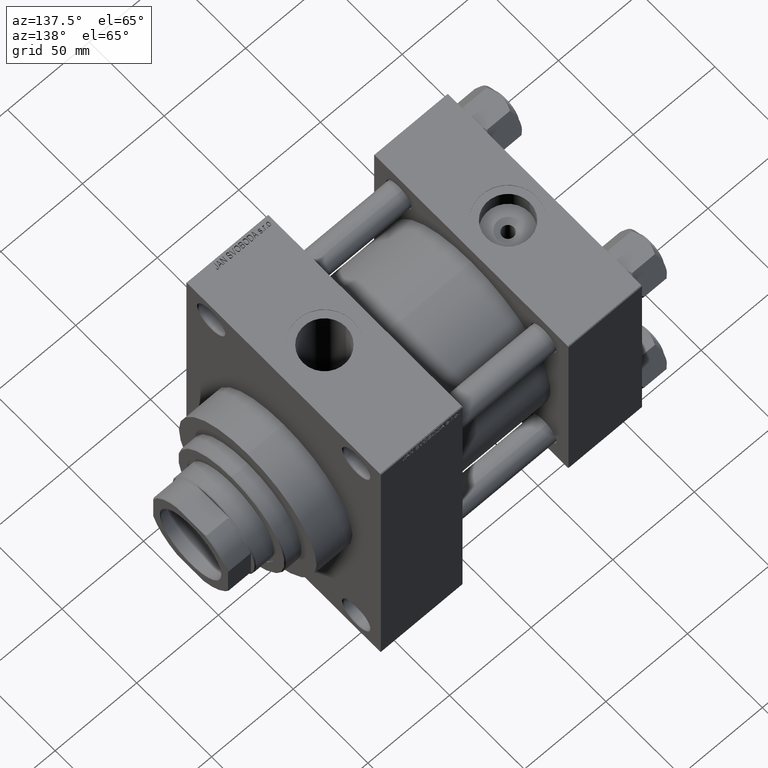
[diagram: clean part render]
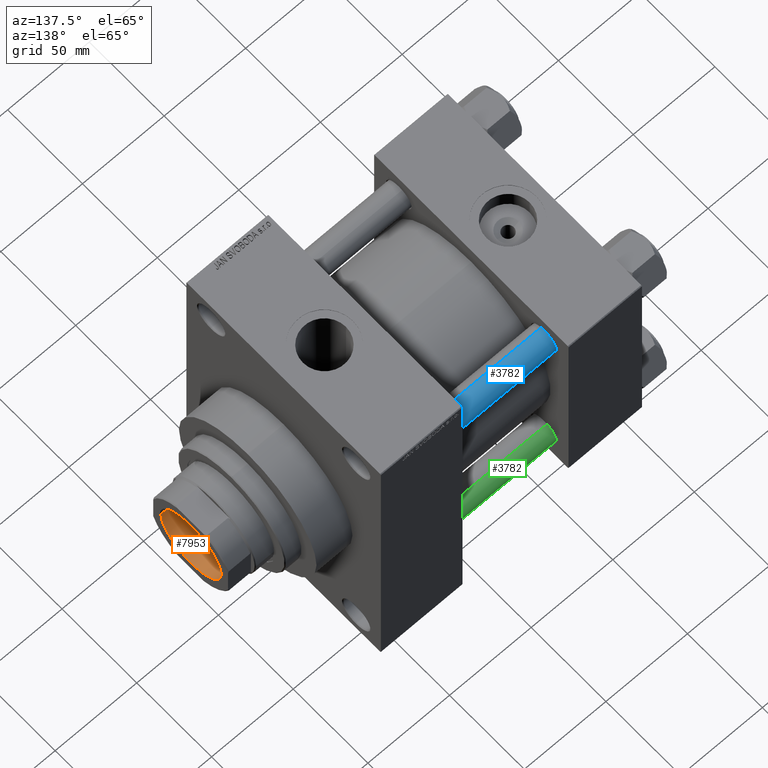
[diagram: same view with three faces highlighted in distinct colors, each labeled with its STEP entity id]
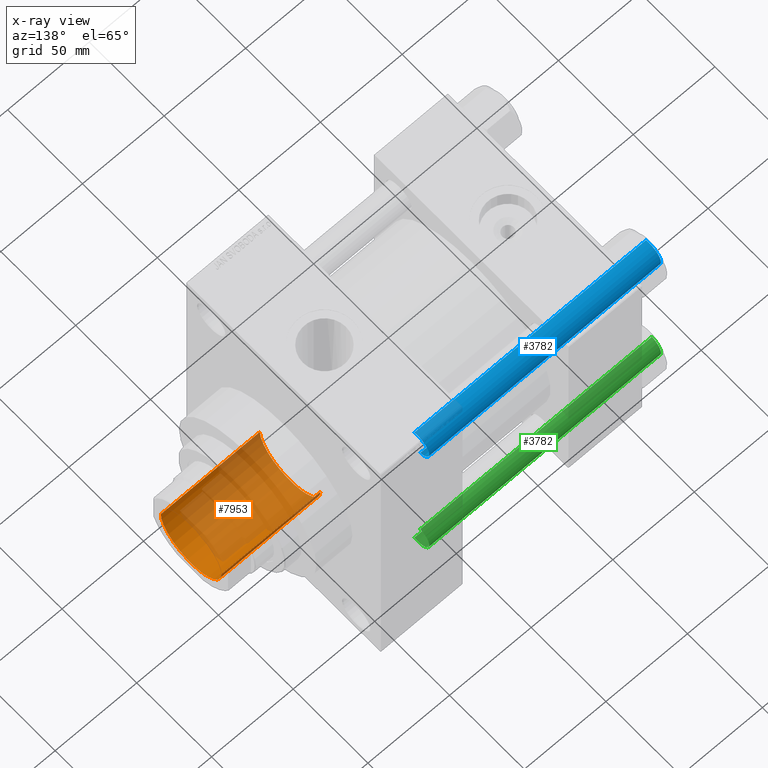
[diagram: x-ray of the same camera — body ghosted, the three highlighted faces saturated]
A machine part, auxiliary view with three faces highlighted in distinct colors.
The next image is the same camera in x-ray (body ghosted, the three faces saturated) — at least one of them is partly hidden behind the body in this view.
Their STEP definitions:

[orange] entity #7953 — the highlighted cylindrical surface (partial cylindrical patch) has radius 20.25 mm, axis along (1, 0, 0).
#303 = DIRECTION ( 'NONE',  ( -0.000000000000000000, -0.000000000000000000, 1.000000000000000000 ) ) ;
#2147 = CARTESIAN_POINT ( 'NONE',  ( 20.24999999999999289, 0.000000000000000000, 172.0000000000000000 ) ) ;
#5986 = DIRECTION ( 'NONE',  ( -0.000000000000000000, -0.000000000000000000, 1.000000000000000000 ) ) ;
#6214 = EDGE_CURVE ( 'NONE', #28923, #8968, #32010, .T. ) ;
#6332 = VECTOR ( 'NONE', #5986, 1000.000000000000000 ) ;
#7672 = DIRECTION ( 'NONE',  ( 1.000000000000000000, 0.000000000000000000, 0.000000000000000000 ) ) ;
#7953 = ADVANCED_FACE ( 'NONE', ( #36679 ), #33049, .F. ) ;
#8968 = VERTEX_POINT ( 'NONE', #16857 ) ;
#9149 = EDGE_CURVE ( 'NONE', #8968, #15793, #25657, .T. ) ;
#9890 = CARTESIAN_POINT ( 'NONE',  ( 0.000000000000000000, 0.000000000000000000, 172.0000000000000000 ) ) ;
#10499 = CARTESIAN_POINT ( 'NONE',  ( -20.24999999999998934, 2.479909768273389117E-15, 111.0000000000000142 ) ) ;
#10710 = LINE ( 'NONE', #42821, #47074 ) ;
#11021 = AXIS2_PLACEMENT_3D ( 'NONE', #40730, #19478, #7672 ) ;
#14491 = CIRCLE ( 'NONE', #19898, 20.24999999999998934 ) ;
#15793 = VERTEX_POINT ( 'NONE', #22271 ) ;
#16857 = CARTESIAN_POINT ( 'NONE',  ( 20.24999999999999289, 0.000000000000000000, 171.7000000000000455 ) ) ;
#19478 = DIRECTION ( 'NONE',  ( 0.000000000000000000, 0.000000000000000000, 1.000000000000000000 ) ) ;
#19479 = EDGE_LOOP ( 'NONE', ( #29958, #27586, #42632, #46082 ) ) ;
#19898 = AXIS2_PLACEMENT_3D ( 'NONE', #44003, #303, #33129 ) ;
#22271 = CARTESIAN_POINT ( 'NONE',  ( -20.24999999999999289, 2.479909768273389511E-15, 171.7000000000000455 ) ) ;
#24610 = DIRECTION ( 'NONE',  ( -0.000000000000000000, -0.000000000000000000, 1.000000000000000000 ) ) ;
#25426 = DIRECTION ( 'NONE',  ( -0.000000000000000000, -0.000000000000000000, 1.000000000000000000 ) ) ;
#25657 = CIRCLE ( 'NONE', #11021, 20.24999999999999289 ) ;
#27586 = ORIENTED_EDGE ( 'NONE', *, *, #42664, .F. ) ;
#28923 = VERTEX_POINT ( 'NONE', #46150 ) ;
#29958 = ORIENTED_EDGE ( 'NONE', *, *, #31694, .F. ) ;
#31694 = EDGE_CURVE ( 'NONE', #42344, #15793, #10710, .T. ) ;
#32010 = LINE ( 'NONE', #2147, #6332 ) ;
#33049 = CYLINDRICAL_SURFACE ( 'NONE', #45680, 20.24999999999999289 ) ;
#33129 = DIRECTION ( 'NONE',  ( 1.000000000000000000, 0.000000000000000000, 0.000000000000000000 ) ) ;
#36679 = FACE_OUTER_BOUND ( 'NONE', #19479, .T. ) ;
#37868 = DIRECTION ( 'NONE',  ( 1.000000000000000000, 0.000000000000000000, 0.000000000000000000 ) ) ;
#40730 = CARTESIAN_POINT ( 'NONE',  ( 0.000000000000000000, 0.000000000000000000, 171.7000000000000455 ) ) ;
#42344 = VERTEX_POINT ( 'NONE', #10499 ) ;
#42632 = ORIENTED_EDGE ( 'NONE', *, *, #6214, .T. ) ;
#42664 = EDGE_CURVE ( 'NONE', #28923, #42344, #14491, .T. ) ;
#42821 = CARTESIAN_POINT ( 'NONE',  ( -20.24999999999999289, 2.479909768273389511E-15, 172.0000000000000000 ) ) ;
#44003 = CARTESIAN_POINT ( 'NONE',  ( 0.000000000000000000, 0.000000000000000000, 111.0000000000000142 ) ) ;
#45680 = AXIS2_PLACEMENT_3D ( 'NONE', #9890, #24610, #37868 ) ;
#46082 = ORIENTED_EDGE ( 'NONE', *, *, #9149, .T. ) ;
#46150 = CARTESIAN_POINT ( 'NONE',  ( 20.24999999999998934, 0.000000000000000000, 111.0000000000000142 ) ) ;
#47074 = VECTOR ( 'NONE', #25426, 1000.000000000000000 ) ;

[blue] entity #3782 — the highlighted cylindrical surface (edge-blend (fillet) strip) has radius 8 mm, axis along (-1, -0, 0).
#149 = CARTESIAN_POINT ( 'NONE',  ( 8.000000000000000000, 9.797174393178825657E-16, 142.4999999999999716 ) ) ;
#708 = CARTESIAN_POINT ( 'NONE',  ( 8.000000000000000000, 9.797174393178825657E-16, 143.0000000000000000 ) ) ;
#2430 = CARTESIAN_POINT ( 'NONE',  ( -8.000000000000000000, 0.000000000000000000, 143.0000000000000000 ) ) ;
#3782 = ADVANCED_FACE ( 'NONE', ( #14235 ), #28933, .T. ) ;
#4407 = EDGE_CURVE ( 'NONE', #37935, #8914, #16669, .T. ) ;
#4567 = DIRECTION ( 'NONE',  ( -0.000000000000000000, -0.000000000000000000, -1.000000000000000000 ) ) ;
#4805 = ORIENTED_EDGE ( 'NONE', *, *, #45771, .T. ) ;
#5047 = LINE ( 'NONE', #708, #24162 ) ;
#8914 = VERTEX_POINT ( 'NONE', #41731 ) ;
#9923 = CIRCLE ( 'NONE', #36921, 8.000000000000000000 ) ;
#10828 = EDGE_CURVE ( 'NONE', #46634, #45808, #5047, .T. ) ;
#13881 = ORIENTED_EDGE ( 'NONE', *, *, #10828, .T. ) ;
#14235 = FACE_OUTER_BOUND ( 'NONE', #24291, .T. ) ;
#14479 = DIRECTION ( 'NONE',  ( -0.000000000000000000, -0.000000000000000000, -1.000000000000000000 ) ) ;
#16669 = LINE ( 'NONE', #2430, #46784 ) ;
#16940 = DIRECTION ( 'NONE',  ( 1.000000000000000000, 0.000000000000000000, 0.000000000000000000 ) ) ;
#18551 = DIRECTION ( 'NONE',  ( -0.000000000000000000, -0.000000000000000000, 1.000000000000000000 ) ) ;
#19555 = ORIENTED_EDGE ( 'NONE', *, *, #37474, .T. ) ;
#20343 = ORIENTED_EDGE ( 'NONE', *, *, #4407, .F. ) ;
#23710 = DIRECTION ( 'NONE',  ( 0.000000000000000000, 0.000000000000000000, -1.000000000000000000 ) ) ;
#24162 = VECTOR ( 'NONE', #4567, 1000.000000000000000 ) ;
#24291 = EDGE_LOOP ( 'NONE', ( #4805, #13881, #19555, #20343 ) ) ;
#25598 = CARTESIAN_POINT ( 'NONE',  ( -8.000000000000000000, 0.000000000000000000, 142.4999999999999716 ) ) ;
#28933 = CYLINDRICAL_SURFACE ( 'NONE', #34449, 8.000000000000000000 ) ;
#30098 = DIRECTION ( 'NONE',  ( 1.000000000000000000, 0.000000000000000000, 0.000000000000000000 ) ) ;
#32910 = AXIS2_PLACEMENT_3D ( 'NONE', #41448, #18551, #30098 ) ;
#34449 = AXIS2_PLACEMENT_3D ( 'NONE', #43679, #14479, #43927 ) ;
#34467 = CIRCLE ( 'NONE', #32910, 8.000000000000000000 ) ;
#36921 = AXIS2_PLACEMENT_3D ( 'NONE', #46162, #23710, #16940 ) ;
#37474 = EDGE_CURVE ( 'NONE', #45808, #8914, #34467, .T. ) ;
#37935 = VERTEX_POINT ( 'NONE', #25598 ) ;
#41448 = CARTESIAN_POINT ( 'NONE',  ( 0.000000000000000000, 0.000000000000000000, 0.4999999999999726885 ) ) ;
#41731 = CARTESIAN_POINT ( 'NONE',  ( -8.000000000000000000, 0.000000000000000000, 0.4999999999999726885 ) ) ;
#42729 = DIRECTION ( 'NONE',  ( -0.000000000000000000, -0.000000000000000000, -1.000000000000000000 ) ) ;
#43679 = CARTESIAN_POINT ( 'NONE',  ( 0.000000000000000000, 0.000000000000000000, 143.0000000000000000 ) ) ;
#43927 = DIRECTION ( 'NONE',  ( -1.000000000000000000, 0.000000000000000000, 0.000000000000000000 ) ) ;
#45681 = CARTESIAN_POINT ( 'NONE',  ( 8.000000000000000000, 9.797174393178825657E-16, 0.4999999999999726885 ) ) ;
#45771 = EDGE_CURVE ( 'NONE', #37935, #46634, #9923, .T. ) ;
#45808 = VERTEX_POINT ( 'NONE', #45681 ) ;
#46162 = CARTESIAN_POINT ( 'NONE',  ( 0.000000000000000000, 0.000000000000000000, 142.4999999999999716 ) ) ;
#46634 = VERTEX_POINT ( 'NONE', #149 ) ;
#46784 = VECTOR ( 'NONE', #42729, 1000.000000000000000 ) ;

[green] entity #3782 — the highlighted cylindrical surface (edge-blend (fillet) strip) has radius 8 mm, axis along (1, -0, 0).
#149 = CARTESIAN_POINT ( 'NONE',  ( 8.000000000000000000, 9.797174393178825657E-16, 142.4999999999999716 ) ) ;
#708 = CARTESIAN_POINT ( 'NONE',  ( 8.000000000000000000, 9.797174393178825657E-16, 143.0000000000000000 ) ) ;
#2430 = CARTESIAN_POINT ( 'NONE',  ( -8.000000000000000000, 0.000000000000000000, 143.0000000000000000 ) ) ;
#3782 = ADVANCED_FACE ( 'NONE', ( #14235 ), #28933, .T. ) ;
#4407 = EDGE_CURVE ( 'NONE', #37935, #8914, #16669, .T. ) ;
#4567 = DIRECTION ( 'NONE',  ( -0.000000000000000000, -0.000000000000000000, -1.000000000000000000 ) ) ;
#4805 = ORIENTED_EDGE ( 'NONE', *, *, #45771, .T. ) ;
#5047 = LINE ( 'NONE', #708, #24162 ) ;
#8914 = VERTEX_POINT ( 'NONE', #41731 ) ;
#9923 = CIRCLE ( 'NONE', #36921, 8.000000000000000000 ) ;
#10828 = EDGE_CURVE ( 'NONE', #46634, #45808, #5047, .T. ) ;
#13881 = ORIENTED_EDGE ( 'NONE', *, *, #10828, .T. ) ;
#14235 = FACE_OUTER_BOUND ( 'NONE', #24291, .T. ) ;
#14479 = DIRECTION ( 'NONE',  ( -0.000000000000000000, -0.000000000000000000, -1.000000000000000000 ) ) ;
#16669 = LINE ( 'NONE', #2430, #46784 ) ;
#16940 = DIRECTION ( 'NONE',  ( 1.000000000000000000, 0.000000000000000000, 0.000000000000000000 ) ) ;
#18551 = DIRECTION ( 'NONE',  ( -0.000000000000000000, -0.000000000000000000, 1.000000000000000000 ) ) ;
#19555 = ORIENTED_EDGE ( 'NONE', *, *, #37474, .T. ) ;
#20343 = ORIENTED_EDGE ( 'NONE', *, *, #4407, .F. ) ;
#23710 = DIRECTION ( 'NONE',  ( 0.000000000000000000, 0.000000000000000000, -1.000000000000000000 ) ) ;
#24162 = VECTOR ( 'NONE', #4567, 1000.000000000000000 ) ;
#24291 = EDGE_LOOP ( 'NONE', ( #4805, #13881, #19555, #20343 ) ) ;
#25598 = CARTESIAN_POINT ( 'NONE',  ( -8.000000000000000000, 0.000000000000000000, 142.4999999999999716 ) ) ;
#28933 = CYLINDRICAL_SURFACE ( 'NONE', #34449, 8.000000000000000000 ) ;
#30098 = DIRECTION ( 'NONE',  ( 1.000000000000000000, 0.000000000000000000, 0.000000000000000000 ) ) ;
#32910 = AXIS2_PLACEMENT_3D ( 'NONE', #41448, #18551, #30098 ) ;
#34449 = AXIS2_PLACEMENT_3D ( 'NONE', #43679, #14479, #43927 ) ;
#34467 = CIRCLE ( 'NONE', #32910, 8.000000000000000000 ) ;
#36921 = AXIS2_PLACEMENT_3D ( 'NONE', #46162, #23710, #16940 ) ;
#37474 = EDGE_CURVE ( 'NONE', #45808, #8914, #34467, .T. ) ;
#37935 = VERTEX_POINT ( 'NONE', #25598 ) ;
#41448 = CARTESIAN_POINT ( 'NONE',  ( 0.000000000000000000, 0.000000000000000000, 0.4999999999999726885 ) ) ;
#41731 = CARTESIAN_POINT ( 'NONE',  ( -8.000000000000000000, 0.000000000000000000, 0.4999999999999726885 ) ) ;
#42729 = DIRECTION ( 'NONE',  ( -0.000000000000000000, -0.000000000000000000, -1.000000000000000000 ) ) ;
#43679 = CARTESIAN_POINT ( 'NONE',  ( 0.000000000000000000, 0.000000000000000000, 143.0000000000000000 ) ) ;
#43927 = DIRECTION ( 'NONE',  ( -1.000000000000000000, 0.000000000000000000, 0.000000000000000000 ) ) ;
#45681 = CARTESIAN_POINT ( 'NONE',  ( 8.000000000000000000, 9.797174393178825657E-16, 0.4999999999999726885 ) ) ;
#45771 = EDGE_CURVE ( 'NONE', #37935, #46634, #9923, .T. ) ;
#45808 = VERTEX_POINT ( 'NONE', #45681 ) ;
#46162 = CARTESIAN_POINT ( 'NONE',  ( 0.000000000000000000, 0.000000000000000000, 142.4999999999999716 ) ) ;
#46634 = VERTEX_POINT ( 'NONE', #149 ) ;
#46784 = VECTOR ( 'NONE', #42729, 1000.000000000000000 ) ;